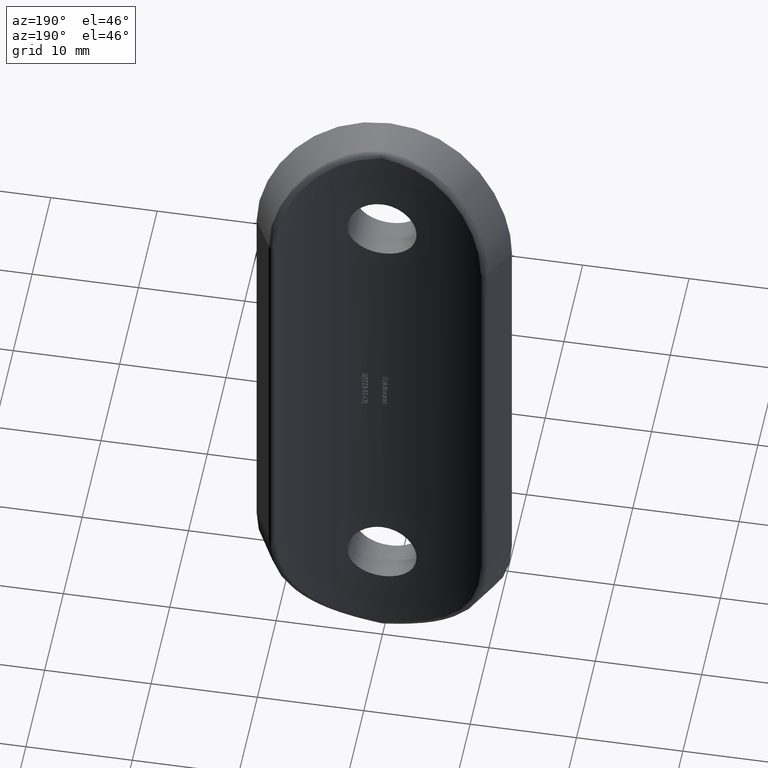
[diagram: clean part render]
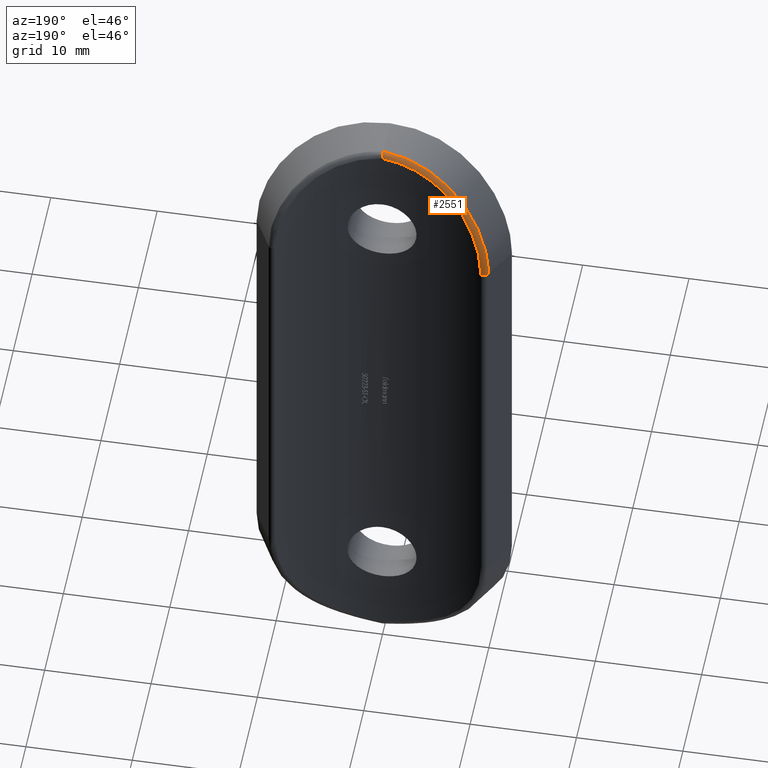
[diagram: same view with one face highlighted and labeled with its STEP entity id]
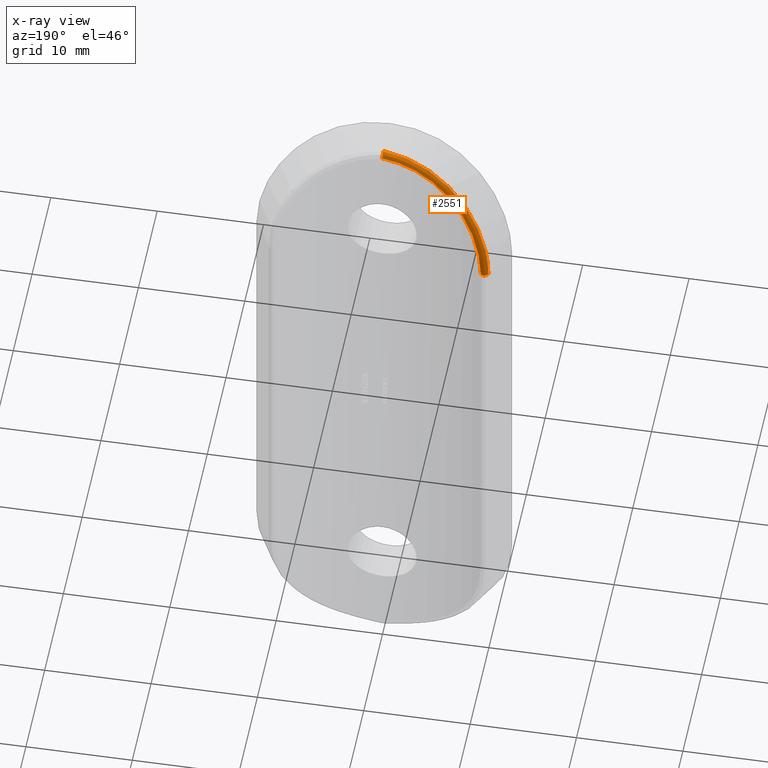
[diagram: x-ray of the same camera — body ghosted, the highlighted face saturated]
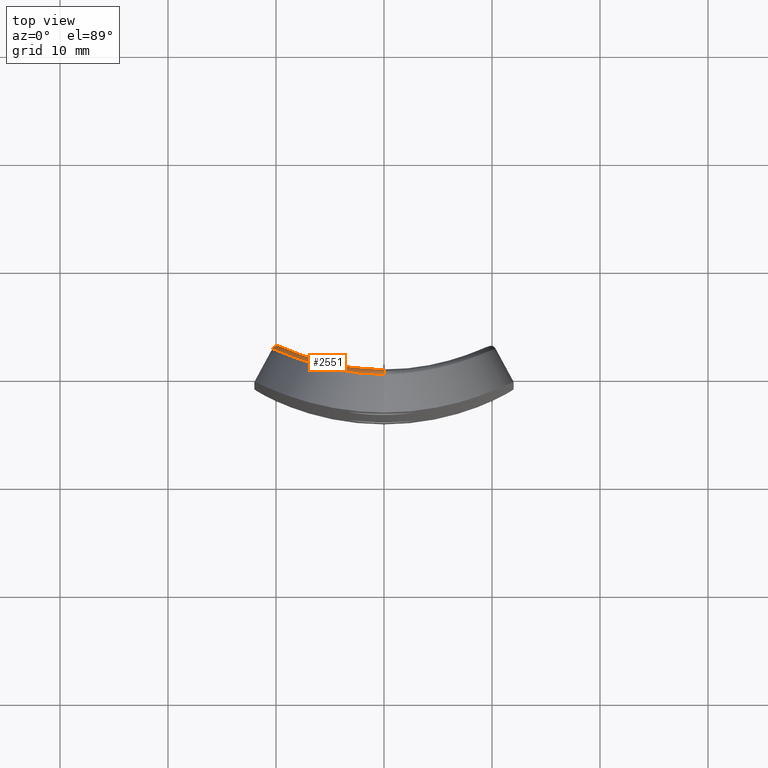
[diagram: same view with one face highlighted and labeled with its STEP entity id]
A machine part, auxiliary view. The second image highlights one B-rep face of the part: STEP entity #2551.
The next image is the same camera in x-ray: the body ghosted, the highlighted face saturated — about 0% of this face is hidden behind the body in this view.
A second angle (top view) of the same face is appended — the face is thin or edge-on in the first view.
In plain terms, the highlighted face is a freeform B-spline surface patch.
Its self-contained STEP definition (entity closure, byte-faithful):
#69 = CARTESIAN_POINT ( 'NONE',  ( -1.299450767778969700, 0.03675803293637447400, 31.10798472813244300 ) ) ;
#117 = CARTESIAN_POINT ( 'NONE',  ( -8.757743212834229900, 1.891853518452949000, 24.30637283226817800 ) ) ;
#454 = EDGE_CURVE ( 'NONE', #11138, #10729, #4853, .T. ) ;
#695 = CARTESIAN_POINT ( 'NONE',  ( 8.258174201492155500E-015, -0.2194944559927970700, 31.31449719995204400 ) ) ;
#781 = CARTESIAN_POINT ( 'NONE',  ( -3.525587456594100100, -0.1519860559817196300, 30.46195507858155700 ) ) ;
#930 = CARTESIAN_POINT ( 'NONE',  ( -2.698814833560994100, 0.1620275619917137300, 30.23560624249901000 ) ) ;
#961 = CARTESIAN_POINT ( 'NONE',  ( -10.01455287572743700, 1.963858344304091100, 22.41603380459389800 ) ) ;
#1051 = CARTESIAN_POINT ( 'NONE',  ( -7.732253910562769200, 1.456091019347336900, 26.97145132603512600 ) ) ;
#1092 = CARTESIAN_POINT ( 'NONE',  ( -8.855149811794451200, 1.929807059846778500, 25.15269588713033900 ) ) ;
#1138 = CARTESIAN_POINT ( 'NONE',  ( -1.695678823182629600, -0.3814743112386158600, 31.06659628767090500 ) ) ;
#1180 = CARTESIAN_POINT ( 'NONE',  ( -7.513145445185034400, 1.371568760807480000, 27.25531608044929800 ) ) ;
#1776 = CARTESIAN_POINT ( 'NONE',  ( -7.862896752953653300, 1.511014934721750100, 26.01870236599143400 ) ) ;
#1781 = CARTESIAN_POINT ( 'NONE',  ( -1.806454664494644400, -0.3713428404764561600, 31.03768261639540100 ) ) ;
#1829 = CARTESIAN_POINT ( 'NONE',  ( -9.378791250828024700, 2.187202348987392900, 22.23901331811555300 ) ) ;
#1875 = CARTESIAN_POINT ( 'NONE',  ( -9.446260745329471600, 2.220753179102638300, 21.90253570854342900 ) ) ;
#1882 = CARTESIAN_POINT ( 'NONE',  ( -0.7290367407144261500, -0.4469597635590921700, 31.27580663925250100 ) ) ;
#1930 = CARTESIAN_POINT ( 'NONE',  ( -9.087674179100085700, 1.527117681080103900, 25.12826339384416500 ) ) ;
#2005 = CARTESIAN_POINT ( 'NONE',  ( -10.26968361599218000, 2.091759916415104800, 20.97641610927515300 ) ) ;
#2058 = AXIS2_PLACEMENT_3D ( 'NONE', #3733, #3592, #7009 ) ;
#2150 = CARTESIAN_POINT ( 'NONE',  ( -7.404928707972599600, 1.334177600489952600, 26.69018392525023800 ) ) ;
#2193 = CARTESIAN_POINT ( 'NONE',  ( -4.286111786124879900, 0.4343453752906875600, 29.96667131979415200 ) ) ;
#2242 = CARTESIAN_POINT ( 'NONE',  ( -1.202358941728728600, 0.03140433067582049100, 30.66741318706098000 ) ) ;
#2281 = CARTESIAN_POINT ( 'NONE',  ( -4.713191259388009000, 0.08827675367085187400, 29.84537374343253900 ) ) ;
#2321 = CARTESIAN_POINT ( 'NONE',  ( 0.1035139030850125300, 0.0001825018131598656800, 31.36425706615561300 ) ) ;
#2551 = ADVANCED_FACE ( 'NONE', ( #9031 ), #9789, .T. ) ;
#2747 = CARTESIAN_POINT ( 'NONE',  ( -4.618694692894546100E-015, -5.064187066458384200E-015, 30.87858612579885800 ) ) ;
#2873 = CARTESIAN_POINT ( 'NONE',  ( -2.855490079396820800, -0.2571016089213968300, 30.72652424236561000 ) ) ;
#2920 = CARTESIAN_POINT ( 'NONE',  ( -7.484107909704454700, 1.363936704974490200, 26.58145614662500800 ) ) ;
#2926 = CARTESIAN_POINT ( 'NONE',  ( -10.09358122146651100, 2.003259200978645200, 22.03692327181783000 ) ) ;
#2928 = CARTESIAN_POINT ( 'NONE',  ( -9.663017501426530500, 2.330286362344426500, 19.50000000000000000 ) ) ;
#2977 = CARTESIAN_POINT ( 'NONE',  ( -1.708567062275326200, 0.06635928085817799400, 30.53996242653493800 ) ) ;
#2982 = CARTESIAN_POINT ( 'NONE',  ( -10.33058993646414000, 2.123341184457219200, 20.23771835066772700 ) ) ;
#3007 = CARTESIAN_POINT ( 'NONE',  ( -10.33058993646413800, 2.123341184457220500, 19.50000000000000000 ) ) ;
#3028 = CARTESIAN_POINT ( 'NONE',  ( -8.792679097546299600, 1.907852033800410800, 24.21812994751090600 ) ) ;
#3058 = CARTESIAN_POINT ( 'NONE',  ( -10.03809091700169500, 2.520350322648849500, 20.97309541767456800 ) ) ;
#3262 = CARTESIAN_POINT ( 'NONE',  ( -7.194838394101411800, 1.256860864617563600, 26.96453531782353600 ) ) ;
#3305 = CARTESIAN_POINT ( 'NONE',  ( -8.478264706986816900, 1.765749520954584800, 24.93592919526149400 ) ) ;
#3352 = CARTESIAN_POINT ( 'NONE',  ( -2.677280337955529400, 0.1580765227547881700, 30.71057839048122800 ) ) ;
#3384 = CARTESIAN_POINT ( 'NONE',  ( -1.555207741306705000E-015, -0.4665273873807559400, 31.38144928148674100 ) ) ;
#3395 = CARTESIAN_POINT ( 'NONE',  ( -8.140444897297268100, 1.620457699221503400, 26.38584797785641100 ) ) ;
#3592 = DIRECTION ( 'NONE',  ( 0.0000000000000000000, -0.0000000000000000000, 1.000000000000000000 ) ) ;
#3733 = CARTESIAN_POINT ( 'NONE',  ( -9.890918857592250600, 1.885245946361984200, 19.50000000000000000 ) ) ;
#3751 = VERTEX_POINT ( 'NONE', #13248 ) ;
#3857 = CARTESIAN_POINT ( 'NONE',  ( -2.563273398535507500E-015, -0.3398445469029665600, 31.37290625969599800 ) ) ;
#3988 = CARTESIAN_POINT ( 'NONE',  ( -7.963226863790069400, 1.066953135367973800, 26.94898104757636400 ) ) ;
#4004 = EDGE_CURVE ( 'NONE', #8119, #10729, #9413, .T. ) ;
#4142 = CARTESIAN_POINT ( 'NONE',  ( -1.555207741306705000E-015, -0.4665273873807559400, 31.38144928148674100 ) ) ;
#4302 = CARTESIAN_POINT ( 'NONE',  ( -8.339505727220434000, 1.214131658363987600, 26.41221021444543000 ) ) ;
#4349 = CARTESIAN_POINT ( 'NONE',  ( -5.486798817883769000, 0.7188152381051341500, 29.20168891032312400 ) ) ;
#4388 = CARTESIAN_POINT ( 'NONE',  ( -3.427606778134757900, -0.1685460184468541300, 30.50393587610364700 ) ) ;
#4435 = CARTESIAN_POINT ( 'NONE',  ( -9.097639054325480100, 2.050884868461483500, 23.31396439444796400 ) ) ;
#4474 = CARTESIAN_POINT ( 'NONE',  ( -0.5993615212585695600, 0.005419335144497742700, 31.25677621415463700 ) ) ;
#4521 = CARTESIAN_POINT ( 'NONE',  ( 0.1035115118009985300, -0.4678300197183862300, 31.39406720195801600 ) ) ;
#4628 = EDGE_CURVE ( 'NONE', #8119, #3751, #5770, .T. ) ;
#4853 = B_SPLINE_CURVE_WITH_KNOTS ( 'NONE', 3,
 ( #8324, #3857, #695, #8177, #13749, #2747 ),
 .UNSPECIFIED., .F., .F.,
 ( 4, 2, 4 ),
 ( 2.927345865710862000E-018, 0.0003754857564058667600, 0.0007509715128117306000 ),
 .UNSPECIFIED. ) ;
#5092 = CARTESIAN_POINT ( 'NONE',  ( -7.742899393933323700, 0.9839081457971476900, 27.23461134556578500 ) ) ;
#5170 = EDGE_LOOP ( 'NONE', ( #9943, #5343, #10486, #6386 ) ) ;
#5196 = CARTESIAN_POINT ( 'NONE',  ( -5.113609657060178100, 0.6188133145618912600, 28.96289865701956100 ) ) ;
#5203 = CARTESIAN_POINT ( 'NONE',  ( -10.27070178187117500, 2.092293134099660900, 20.96398982182409300 ) ) ;
#5230 = CARTESIAN_POINT ( 'NONE',  ( -10.09791899111182500, 2.552995661837480100, 20.24330488264096700 ) ) ;
#5285 = CARTESIAN_POINT ( 'NONE',  ( -10.08952598151032900, 2.001231854621692700, 22.05823821567594600 ) ) ;
#5343 = ORIENTED_EDGE ( 'NONE', *, *, #13716, .F. ) ;
#5432 = CARTESIAN_POINT ( 'NONE',  ( -7.795980046934394300, 1.484357380829995000, 26.12420145561173600 ) ) ;
#5522 = CARTESIAN_POINT ( 'NONE',  ( -3.175433922492542700, 0.2300260404083386000, 30.04543854843583300 ) ) ;
#5567 = CARTESIAN_POINT ( 'NONE',  ( -0.6185680184351062300, -0.4518244239474332200, 31.29500909647059400 ) ) ;
#5609 = CARTESIAN_POINT ( 'NONE',  ( -5.329709826376789500, 0.2347872701750953200, 29.45981058203692300 ) ) ;
#5770 = CIRCLE ( 'NONE', #2058, 0.5000000000000004400 ) ;
#6296 = CARTESIAN_POINT ( 'NONE',  ( -8.522911624579377200, 1.785498515474548200, 24.84042727051944500 ) ) ;
#6301 = CARTESIAN_POINT ( 'NONE',  ( -0.3660390188082732200, -0.4610958318816601500, 31.33550048143712300 ) ) ;
#6346 = CARTESIAN_POINT ( 'NONE',  ( -0.6896497510945535100, 0.008480767863662211400, 30.77399828199671100 ) ) ;
#6380 = CARTESIAN_POINT ( 'NONE',  ( -9.605969955431643100, 2.300762448865719900, 20.91489877139577700 ) ) ;
#6386 = ORIENTED_EDGE ( 'NONE', *, *, #4004, .F. ) ;
#6475 = CARTESIAN_POINT ( 'NONE',  ( -9.366928434817744200, 2.181337284298666000, 22.29453239610827000 ) ) ;
#6520 = CARTESIAN_POINT ( 'NONE',  ( -9.066604695671069100, 1.517714613434209000, 25.17227394282741000 ) ) ;
#6566 = CARTESIAN_POINT ( 'NONE',  ( -9.147399129679266500, 2.068441770401141100, 24.49979458128466400 ) ) ;
#6657 = CARTESIAN_POINT ( 'NONE',  ( -4.397301338450598800, 0.01981846325067368100, 30.02166096833967800 ) ) ;
#6699 = CARTESIAN_POINT ( 'NONE',  ( -0.2581862651772561200, -0.4640937288072762800, 31.35128567757027800 ) ) ;
#7009 = DIRECTION ( 'NONE',  ( 1.000000000000000000, 0.0000000000000000000, 0.0000000000000000000 ) ) ;
#7205 = CARTESIAN_POINT ( 'NONE',  ( -9.663017501426532300, 2.330286362344427400, 20.19794404104408200 ) ) ;
#7257 = CARTESIAN_POINT ( 'NONE',  ( -8.562218673332067100, 1.305111158414553600, 26.05909755608868400 ) ) ;
#7394 = CARTESIAN_POINT ( 'NONE',  ( -0.3462656123639344900, -2.526511052115743000E-015, 30.83293499074778800 ) ) ;
#7449 = CARTESIAN_POINT ( 'NONE',  ( -9.842163442257748000, 1.879487073314581400, 23.09594054719443800 ) ) ;
#7489 = CARTESIAN_POINT ( 'NONE',  ( -6.159456498197352300, 0.9072588162060167800, 28.11145014195096100 ) ) ;
#7571 = CARTESIAN_POINT ( 'NONE',  ( -9.608195623836564900, 2.296557456714379200, 23.11872646081004800 ) ) ;
#7616 = CARTESIAN_POINT ( 'NONE',  ( -7.922975927394470700, 1.051607028042544000, 27.00280061775836800 ) ) ;
#7668 = CARTESIAN_POINT ( 'NONE',  ( -6.533477080495823800, 1.026461153271391900, 27.74491136130227500 ) ) ;
#7716 = CARTESIAN_POINT ( 'NONE',  ( -2.538298535582775600, 0.1419357254583247500, 30.29424821216906900 ) ) ;
#7760 = CARTESIAN_POINT ( 'NONE',  ( -1.650231524935909200, 0.06121280808535472400, 31.01890975334585200 ) ) ;
#8119 = VERTEX_POINT ( 'NONE', #2928 ) ;
#8177 = CARTESIAN_POINT ( 'NONE',  ( 1.279232971274991100E-014, -0.04892474438746499000, 31.13001889535815900 ) ) ;
#8324 = CARTESIAN_POINT ( 'NONE',  ( -1.555207741306705000E-015, -0.4665273873807559400, 31.38144928148674100 ) ) ;
#8404 = CARTESIAN_POINT ( 'NONE',  ( -6.539470599577554400, 0.5690297762735063700, 28.53832671473507400 ) ) ;
#8444 = CARTESIAN_POINT ( 'NONE',  ( -8.372688073278617100, 1.227509043111302500, 26.36127210913013700 ) ) ;
#8499 = CARTESIAN_POINT ( 'NONE',  ( -7.049342267791697500, 0.7354834295311182300, 28.04769904794202900 ) ) ;
#8530 = CARTESIAN_POINT ( 'NONE',  ( -4.618694692894546100E-015, -5.064187066458384200E-015, 30.87858612579885800 ) ) ;
#8706 = CARTESIAN_POINT ( 'NONE',  ( -7.976890602681646000, 1.557139150728243300, 25.83306955789271700 ) ) ;
#8747 = CARTESIAN_POINT ( 'NONE',  ( -4.386553868771555300, 0.4566475144797612600, 29.41431650444744900 ) ) ;
#8789 = CARTESIAN_POINT ( 'NONE',  ( -1.336397895076264900, -0.4106252976387669300, 31.15295289126160200 ) ) ;
#8839 = CARTESIAN_POINT ( 'NONE',  ( -6.995248304402343500, 0.7172880876247422800, 28.10338576803305000 ) ) ;
#9031 = FACE_OUTER_BOUND ( 'NONE', #5170, .T. ) ;
#9191 = CARTESIAN_POINT ( 'NONE',  ( -9.663017501426530500, 2.330286362344426500, 19.50000000000000000 ) ) ;
#9413 = B_SPLINE_CURVE_WITH_KNOTS ( 'NONE', 3,
 ( #9191, #7205, #12833, #1875, #1829, #10522, #9580, #3028, #6296, #9535, #1776, #2920, #11732, #13915, #7489, #5196, #11677, #10572, #930, #2977, #9488, #6346, #7394, #10671 ),
 .UNSPECIFIED., .F., .F.,
 ( 4, 2, 2, 2, 2, 2, 2, 2, 2, 2, 2, 4 ),
 ( 0.0000000000000000000, 0.002065627312919607800, 0.003098440969379416600, 0.004131254625839225900, 0.006196881938758845400, 0.007229695595218655100, 0.008262509251678464000, 0.01032813656459809200, 0.01239376387751772000, 0.01445939119043734800, 0.01549220484689716300, 0.01652501850335697700 ),
 .UNSPECIFIED. ) ;
#9488 = CARTESIAN_POINT ( 'NONE',  ( -1.370326145789021000, 0.04159007866243107100, 30.62770380530945500 ) ) ;
#9493 = CARTESIAN_POINT ( 'NONE',  ( -9.380846267159299100, 1.660741133774004600, 24.47549258454393200 ) ) ;
#9535 = CARTESIAN_POINT ( 'NONE',  ( -8.037999328782268200, 1.582118121373201600, 25.72968974590903800 ) ) ;
#9541 = CARTESIAN_POINT ( 'NONE',  ( -9.737482093167635400, 1.828916653511875300, 23.44699526699284300 ) ) ;
#9580 = CARTESIAN_POINT ( 'NONE',  ( -9.120173968685222100, 2.061636133241118200, 23.23995891737122900 ) ) ;
#9586 = CARTESIAN_POINT ( 'NONE',  ( -10.33058993646414000, 2.123341184457220100, 19.50000000000000000 ) ) ;
#9612 = CARTESIAN_POINT ( 'NONE',  ( -9.663017500633420900, 2.330286361938282500, 20.21299152555880600 ) ) ;
#9789 =( BOUNDED_SURFACE ( )  B_SPLINE_SURFACE ( 3, 2, ( 
 ( #3007, #11852, #12964 ),
 ( #11809, #5230, #9612 ),
 ( #2005, #3058, #6380 ),
 ( #5285, #12915, #14048 ),
 ( #961, #13013, #6475 ),
 ( #14098, #7571, #9805 ),
 ( #11948, #12041, #4435 ),
 ( #13054, #6566, #117 ),
 ( #6520, #1092, #3305 ),
 ( #10847, #14147, #8706 ),
 ( #4302, #3395, #5432 ),
 ( #7616, #1051, #2150 ),
 ( #13185, #1180, #3262 ),
 ( #8839, #14192, #7668 ),
 ( #10943, #9940, #10897 ),
 ( #10985, #4349, #9897 ),
 ( #5609, #13232, #13097 ),
 ( #2281, #11996, #8747 ),
 ( #6657, #2193, #9851 ),
 ( #4388, #12086, #5522 ),
 ( #13142, #3352, #7716 ),
 ( #1138, #7760, #11031 ),
 ( #8789, #69, #2242 ),
 ( #5567, #4474, #12129 ),
 ( #6699, #13271, #11077 ),
 ( #4521, #2321, #11122 ) ),
 .UNSPECIFIED., .F., .F., .T. ) 
 B_SPLINE_SURFACE_WITH_KNOTS ( ( 4, 2, 2, 2, 2, 2, 2, 2, 2, 2, 2, 2, 4 ),
 ( 3, 3 ),
 ( 0.0000000000000000000, 0.002108923726170382000, 0.003163385589255573100, 0.004217847452340764100, 0.006326771178511146100, 0.007381233041596336700, 0.008435694904681528100, 0.01054461863085191100, 0.01159908049393710100, 0.01265354235702229200, 0.01476246608319267300, 0.01581692794627786300, 0.01687138980936305600 ),
 ( 0.0000000000000000000, 1.000000000000000000 ),
 .UNSPECIFIED. ) 
 GEOMETRIC_REPRESENTATION_ITEM ( )  RATIONAL_B_SPLINE_SURFACE ( (
 ( 1.000000000000000000, 0.7152067794192034100, 1.000000000000000000),
 ( 1.000000000000000000, 0.7152030138075177200, 1.000000000000000000),
 ( 1.000000000000000000, 0.7162386269002376500, 1.000000000000000000),
 ( 1.000000000000000000, 0.7190974102888898500, 1.000000000000000000),
 ( 1.000000000000000000, 0.7202669975627601400, 1.000000000000000000),
 ( 1.000000000000000000, 0.7229771465162454500, 1.000000000000000000),
 ( 1.000000000000000000, 0.7245272282876105100, 1.000000000000000000),
 ( 1.000000000000000000, 0.7295283016102190900, 1.000000000000000000),
 ( 1.000000000000000000, 0.7333270819599327900, 1.000000000000000000),
 ( 1.000000000000000000, 0.7390232495485985500, 1.000000000000000000),
 ( 1.000000000000000000, 0.7409210345987250500, 1.000000000000000000),
 ( 1.000000000000000000, 0.7445850415033429300, 1.000000000000000000),
 ( 1.000000000000000000, 0.7463470331105472900, 1.000000000000000000),
 ( 1.000000000000000000, 0.7511224776701496100, 1.000000000000000000),
 ( 1.000000000000000000, 0.7536688717658076600, 1.000000000000000000),
 ( 1.000000000000000000, 0.7558262722949765600, 1.000000000000000000),
 ( 1.000000000000000000, 0.7562685044638952600, 1.000000000000000000),
 ( 1.000000000000000000, 0.7564715335615188600, 1.000000000000000000),
 ( 1.000000000000000000, 0.7562327208748900200, 1.000000000000000000),
 ( 1.000000000000000000, 0.7544103873443376300, 1.000000000000000000),
 ( 1.000000000000000000, 0.7517216988929086300, 1.000000000000000000),
 ( 1.000000000000000000, 0.7451516596827607600, 1.000000000000000000),
 ( 1.000000000000000000, 0.7425328598652036800, 1.000000000000000000),
 ( 1.000000000000000000, 0.7365379224982135900, 1.000000000000000000),
 ( 1.000000000000000000, 0.7331517136095792000, 1.000000000000000000),
 ( 1.000000000000000000, 0.7293836484547999700, 1.000000000000000000) ) ) 
 REPRESENTATION_ITEM ( '' )  SURFACE ( )  );
#9805 = CARTESIAN_POINT ( 'NONE',  ( -9.197488118852817300, 2.098819615003722800, 22.97481880383837800 ) ) ;
#9851 = CARTESIAN_POINT ( 'NONE',  ( -4.089052383245361400, 0.3957829341598944600, 29.58325842774060300 ) ) ;
#9897 = CARTESIAN_POINT ( 'NONE',  ( -5.246587116840995400, 0.6576122224470731800, 28.84622238363279900 ) ) ;
#9940 = CARTESIAN_POINT ( 'NONE',  ( -6.318820545173890600, 0.9534114805821107800, 28.54774439321246900 ) ) ;
#9943 = ORIENTED_EDGE ( 'NONE', *, *, #4628, .T. ) ;
#10486 = ORIENTED_EDGE ( 'NONE', *, *, #454, .T. ) ;
#10522 = CARTESIAN_POINT ( 'NONE',  ( -9.216030696412248700, 2.107777027078645100, 22.90692727268363200 ) ) ;
#10526 = CARTESIAN_POINT ( 'NONE',  ( -4.806137074679147000, 0.1020900379496532500, 29.81053893712089900 ) ) ;
#10572 = CARTESIAN_POINT ( 'NONE',  ( -3.330643053977199400, 0.2542796804946497200, 29.97754406847160200 ) ) ;
#10671 = CARTESIAN_POINT ( 'NONE',  ( -4.618694692894546100E-015, -5.064187066458384200E-015, 30.87858612579885800 ) ) ;
#10729 = VERTEX_POINT ( 'NONE', #8530 ) ;
#10847 = CARTESIAN_POINT ( 'NONE',  ( -8.532264867359028700, 1.292735769221177800, 26.10842040826295100 ) ) ;
#10897 = CARTESIAN_POINT ( 'NONE',  ( -6.047123770007471100, 0.8732249970133854100, 28.21497852958624400 ) ) ;
#10943 = CARTESIAN_POINT ( 'NONE',  ( -6.477832343605639300, 0.5498281777575613200, 28.59389063955984500 ) ) ;
#10985 = CARTESIAN_POINT ( 'NONE',  ( -5.626848927577860600, 0.3120361519126378900, 29.25257987857756000 ) ) ;
#11031 = CARTESIAN_POINT ( 'NONE',  ( -1.541555865456710700, 0.05349052147627855700, 30.58465477579861500 ) ) ;
#11077 = CARTESIAN_POINT ( 'NONE',  ( -0.1838401556162214400, -0.001960176051373063500, 30.85748210873692400 ) ) ;
#11122 = CARTESIAN_POINT ( 'NONE',  ( 0.1580750526542744600, 0.0005893412640238255400, 30.89848106854309500 ) ) ;
#11138 = VERTEX_POINT ( 'NONE', #3384 ) ;
#11641 = CARTESIAN_POINT ( 'NONE',  ( -10.01987600549706900, 1.966499582659337900, 22.39180398878291800 ) ) ;
#11677 = CARTESIAN_POINT ( 'NONE',  ( -4.536338801400731300, 0.4819399282931882100, 29.34338558514980400 ) ) ;
#11732 = CARTESIAN_POINT ( 'NONE',  ( -7.279681331109494600, 1.287736958407662300, 26.85581725694044400 ) ) ;
#11782 = CARTESIAN_POINT ( 'NONE',  ( -5.421014655413943100, 0.2527736371594107000, 29.41883732215443800 ) ) ;
#11809 = CARTESIAN_POINT ( 'NONE',  ( -10.33058993645369800, 2.123341184476498400, 20.24399115711013100 ) ) ;
#11852 = CARTESIAN_POINT ( 'NONE',  ( -10.09791899194918200, 2.552995662284760500, 19.50000000000000000 ) ) ;
#11946 = B_SPLINE_CURVE_WITH_KNOTS ( 'NONE', 3,
 ( #4142, #6301, #1882, #13922, #1781, #2873, #781, #10526, #11782, #8404, #8499, #5092, #3988, #8444, #7257, #1930, #9493, #9541, #7449, #11641, #2926, #5203, #2982, #9586 ),
 .UNSPECIFIED., .F., .F.,
 ( 4, 2, 2, 2, 2, 2, 2, 2, 2, 2, 2, 4 ),
 ( 1.227513511661068400E-019, 0.001104049188438082600, 0.002208098376876165600, 0.004416196753752332100, 0.006624295130628496400, 0.008832393507504662400, 0.009936442695942744600, 0.01104049188438083000, 0.01324859026125701400, 0.01435263944969509900, 0.01545668863813318700, 0.01766478701500936700 ),
 .UNSPECIFIED. ) ;
#11948 = CARTESIAN_POINT ( 'NONE',  ( -9.727214493840540000, 1.823994486740721600, 23.47978893340846100 ) ) ;
#11996 = CARTESIAN_POINT ( 'NONE',  ( -4.594658364904248900, 0.5004885697723399100, 29.79092685988980800 ) ) ;
#12041 = CARTESIAN_POINT ( 'NONE',  ( -9.503385620737933700, 2.243608870997716200, 23.47118008416719400 ) ) ;
#12086 = CARTESIAN_POINT ( 'NONE',  ( -3.339284962141790800, 0.2541194991191224600, 30.44871669159590500 ) ) ;
#12129 = CARTESIAN_POINT ( 'NONE',  ( -0.5243656461508916500, 0.003770375247814120600, 30.80355038451571300 ) ) ;
#12833 = CARTESIAN_POINT ( 'NONE',  ( -9.608332408218970500, 2.301995974115452100, 20.88568067004391800 ) ) ;
#12915 = CARTESIAN_POINT ( 'NONE',  ( -9.860173265752200300, 2.426494819454962000, 22.05427422926123900 ) ) ;
#12964 = CARTESIAN_POINT ( 'NONE',  ( -9.663017501426528700, 2.330286362344425200, 19.50000000000000000 ) ) ;
#13013 = CARTESIAN_POINT ( 'NONE',  ( -9.786342818186533100, 2.387878524322291500, 22.41102076221220000 ) ) ;
#13054 = CARTESIAN_POINT ( 'NONE',  ( -9.364642108057424300, 1.653273491039026300, 24.51534556396301000 ) ) ;
#13097 = CARTESIAN_POINT ( 'NONE',  ( -4.966964040085472700, 0.5879211284579263200, 29.04481847412745000 ) ) ;
#13142 = CARTESIAN_POINT ( 'NONE',  ( -2.751877831355409300, -0.2714760641296005700, 30.76356335206650200 ) ) ;
#13185 = CARTESIAN_POINT ( 'NONE',  ( -7.699260179076145700, 0.9677714584154706300, 27.28908033178313600 ) ) ;
#13232 = CARTESIAN_POINT ( 'NONE',  ( -5.196446019220337200, 0.6430515654992186000, 29.40758670405172400 ) ) ;
#13248 = CARTESIAN_POINT ( 'NONE',  ( -10.33058993646414000, 2.123341184457220100, 19.50000000000000000 ) ) ;
#13271 = CARTESIAN_POINT ( 'NONE',  ( -0.2474847149377560300, -0.001559229135335873900, 31.31701424292837600 ) ) ;
#13716 = EDGE_CURVE ( 'NONE', #11138, #3751, #11946, .T. ) ;
#13749 = CARTESIAN_POINT ( 'NONE',  ( -4.651986574979435500E-012, -4.357137480676120200E-015, 31.00375271285350100 ) ) ;
#13915 = CARTESIAN_POINT ( 'NONE',  ( -6.634804319380402900, 1.059809074296156800, 27.63810882670737700 ) ) ;
#13922 = CARTESIAN_POINT ( 'NONE',  ( -1.448652029141994400, -0.4021667335320317500, 31.12710802299231700 ) ) ;
#14048 = CARTESIAN_POINT ( 'NONE',  ( -9.437177149033569600, 2.216226740780071300, 21.95164495668590700 ) ) ;
#14098 = CARTESIAN_POINT ( 'NONE',  ( -9.833747784837029800, 1.875404215299196800, 23.12589788230695100 ) ) ;
#14147 = CARTESIAN_POINT ( 'NONE',  ( -8.329425574143016300, 1.700226752430241900, 26.08441136867680400 ) ) ;
#14192 = CARTESIAN_POINT ( 'NONE',  ( -6.825565222943753300, 1.120627702048395200, 28.06047848145426800 ) ) ;